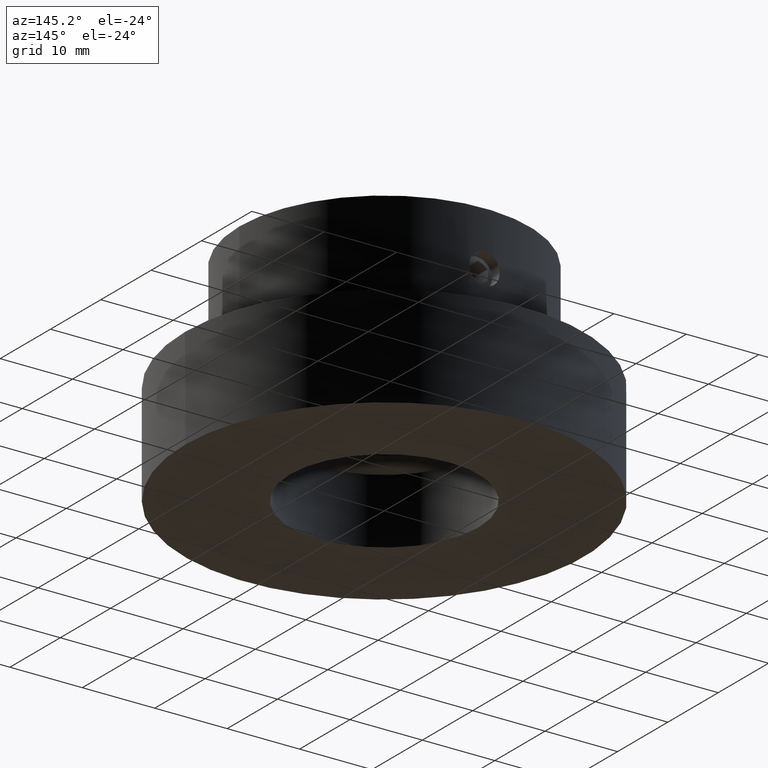
[diagram: clean part render]
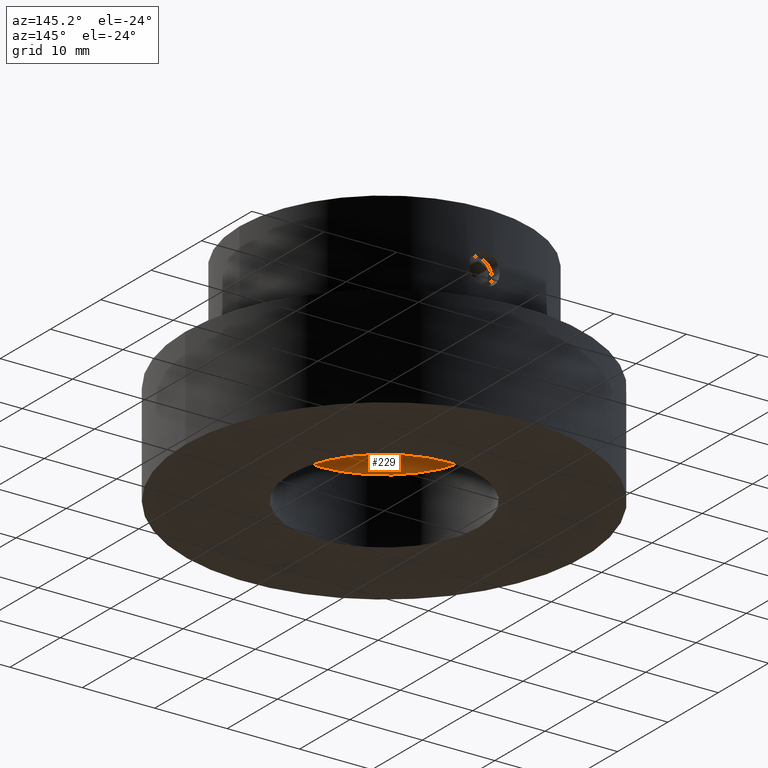
[diagram: same view with one face highlighted and labeled with its STEP entity id]
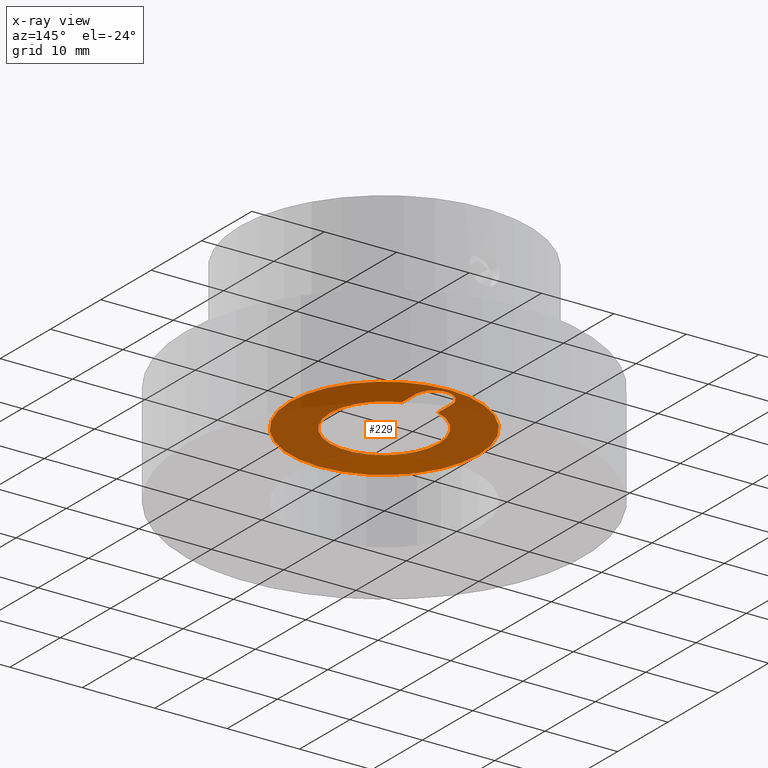
[diagram: x-ray of the same camera — body ghosted, the highlighted face saturated]
A machine part, auxiliary view. The second image highlights one B-rep face of the part: STEP entity #229.
The next image is the same camera in x-ray: the body ghosted, the highlighted face saturated — about 81% of this face is hidden behind the body in this view.
In plain terms, the highlighted planar face has unit normal (0, 0, 1).
Its self-contained STEP definition (entity closure, byte-faithful):
#229 = ADVANCED_FACE( '', ( #284, #285 ), #286, .F. );
#284 = FACE_OUTER_BOUND( '', #356, .T. );
#285 = FACE_BOUND( '', #357, .T. );
#286 = PLANE( '', #358 );
#356 = EDGE_LOOP( '', ( #469 ) );
#357 = EDGE_LOOP( '', ( #470, #471, #472, #473 ) );
#358 = AXIS2_PLACEMENT_3D( '', #474, #475, #476 );
#469 = ORIENTED_EDGE( '', *, *, #585, .F. );
#470 = ORIENTED_EDGE( '', *, *, #584, .F. );
#471 = ORIENTED_EDGE( '', *, *, #575, .F. );
#472 = ORIENTED_EDGE( '', *, *, #578, .F. );
#473 = ORIENTED_EDGE( '', *, *, #580, .F. );
#474 = CARTESIAN_POINT( '', ( 3.46944695195361E-015, 0.000000000000000, 9.00000000000000 ) );
#475 = DIRECTION( '', ( 0.000000000000000, 0.000000000000000, 1.00000000000000 ) );
#476 = DIRECTION( '', ( 1.00000000000000, 0.000000000000000, 0.000000000000000 ) );
#575 = EDGE_CURVE( '', #631, #633, #634, .T. );
#578 = EDGE_CURVE( '', #636, #631, #638, .F. );
#580 = EDGE_CURVE( '', #639, #636, #641, .T. );
#584 = EDGE_CURVE( '', #633, #639, #648, .F. );
#585 = EDGE_CURVE( '', #649, #649, #650, .T. );
#631 = VERTEX_POINT( '', #713 );
#633 = VERTEX_POINT( '', #716 );
#634 = LINE( '', #717, #718 );
#636 = VERTEX_POINT( '', #721 );
#638 = CIRCLE( '', #724, 7.50000000000000 );
#639 = VERTEX_POINT( '', #725 );
#641 = LINE( '', #728, #729 );
#648 = CIRCLE( '', #850, 2.50000000000000 );
#649 = VERTEX_POINT( '', #851 );
#650 = CIRCLE( '', #852, 13.0000000000000 );
#713 = CARTESIAN_POINT( '', ( -2.50000000000000, 7.07106781186547, 9.00000000000000 ) );
#716 = CARTESIAN_POINT( '', ( -2.50000000000000, 9.80000000000000, 9.00000000000000 ) );
#717 = CARTESIAN_POINT( '', ( -2.50000000000000, 1.53075794227797E-016, 9.00000000000000 ) );
#718 = VECTOR( '', #963, 1000.00000000000 );
#721 = CARTESIAN_POINT( '', ( 2.50000000000000, 7.07106781186548, 9.00000000000000 ) );
#724 = AXIS2_PLACEMENT_3D( '', #966, #967, #968 );
#725 = CARTESIAN_POINT( '', ( 2.50000000000000, 9.80000000000000, 9.00000000000000 ) );
#728 = CARTESIAN_POINT( '', ( 2.50000000000000, -1.53075794227797E-016, 9.00000000000000 ) );
#729 = VECTOR( '', #970, 1000.00000000000 );
#850 = AXIS2_PLACEMENT_3D( '', #974, #975, #976 );
#851 = CARTESIAN_POINT( '', ( 13.0000000000000, 0.000000000000000, 9.00000000000000 ) );
#852 = AXIS2_PLACEMENT_3D( '', #977, #978, #979 );
#963 = DIRECTION( '', ( 6.12303176911189E-017, 1.00000000000000, -0.000000000000000 ) );
#966 = CARTESIAN_POINT( '', ( 0.000000000000000, 0.000000000000000, 9.00000000000000 ) );
#967 = DIRECTION( '', ( 0.000000000000000, 0.000000000000000, 1.00000000000000 ) );
#968 = DIRECTION( '', ( 1.00000000000000, 0.000000000000000, -0.000000000000000 ) );
#970 = DIRECTION( '', ( -6.12303176911189E-017, -1.00000000000000, 0.000000000000000 ) );
#974 = CARTESIAN_POINT( '', ( 0.000000000000000, 9.80000000000000, 9.00000000000000 ) );
#975 = DIRECTION( '', ( 0.000000000000000, 0.000000000000000, 1.00000000000000 ) );
#976 = DIRECTION( '', ( 1.00000000000000, 0.000000000000000, -0.000000000000000 ) );
#977 = CARTESIAN_POINT( '', ( 3.46944695195361E-015, 0.000000000000000, 9.00000000000000 ) );
#978 = DIRECTION( '', ( 0.000000000000000, 0.000000000000000, 1.00000000000000 ) );
#979 = DIRECTION( '', ( 1.00000000000000, 0.000000000000000, 0.000000000000000 ) );